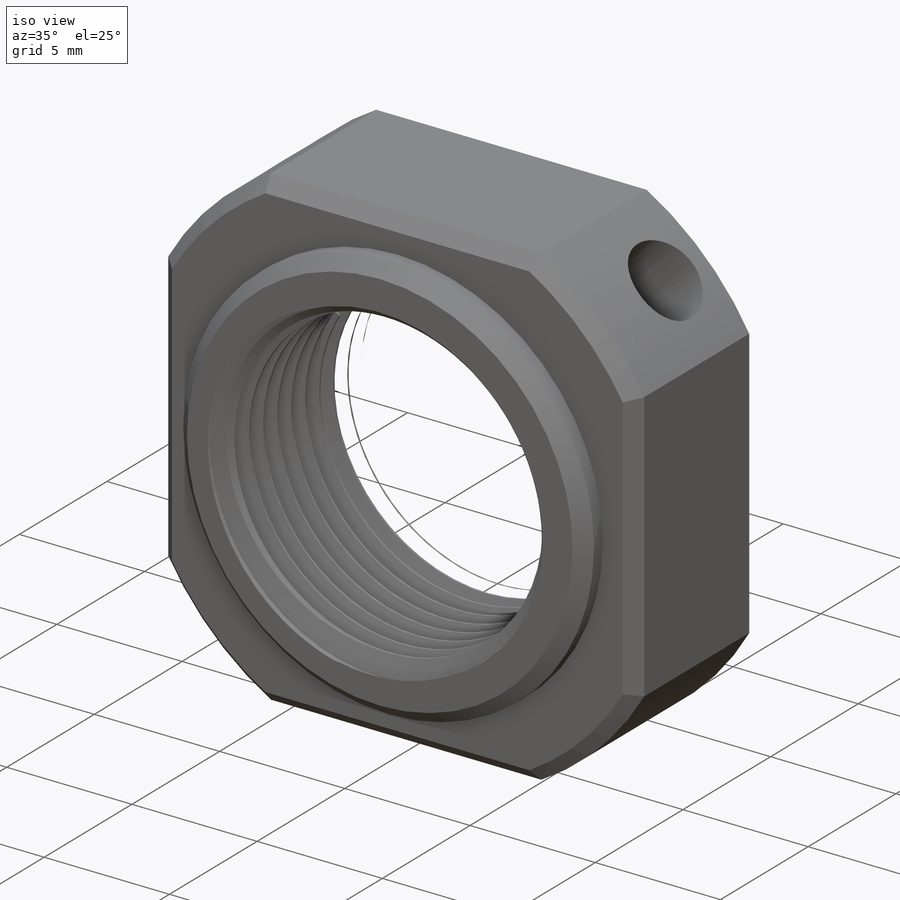
[diagram: iso view]
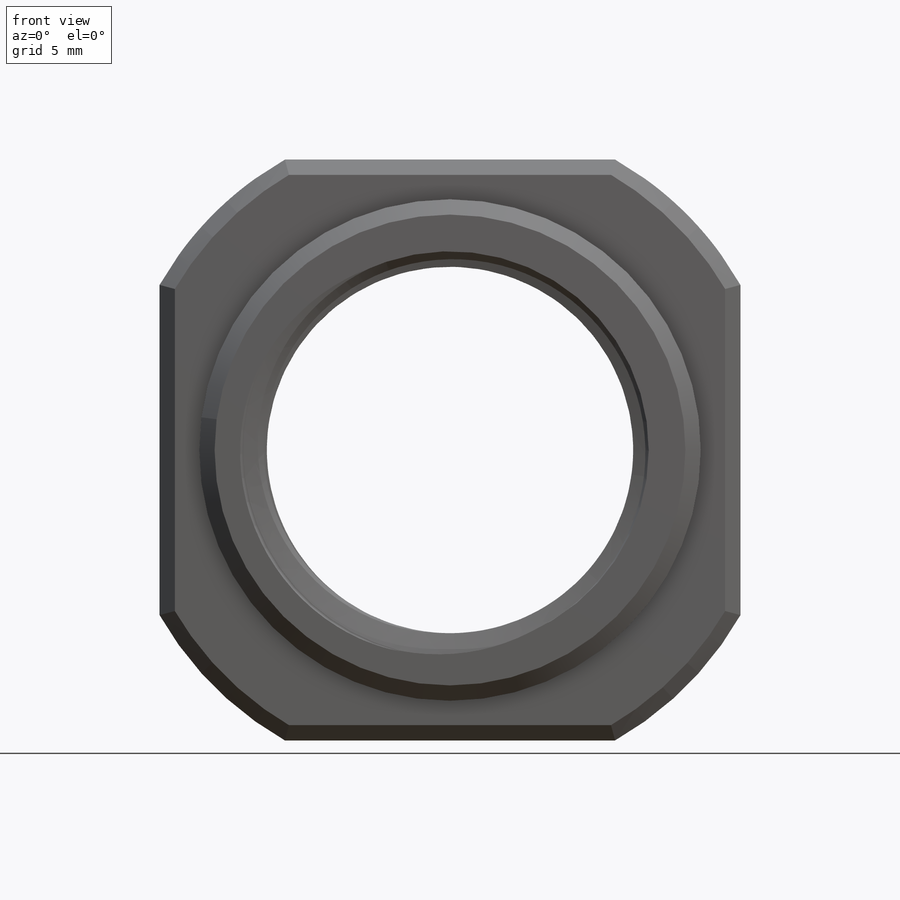
[diagram: front view]
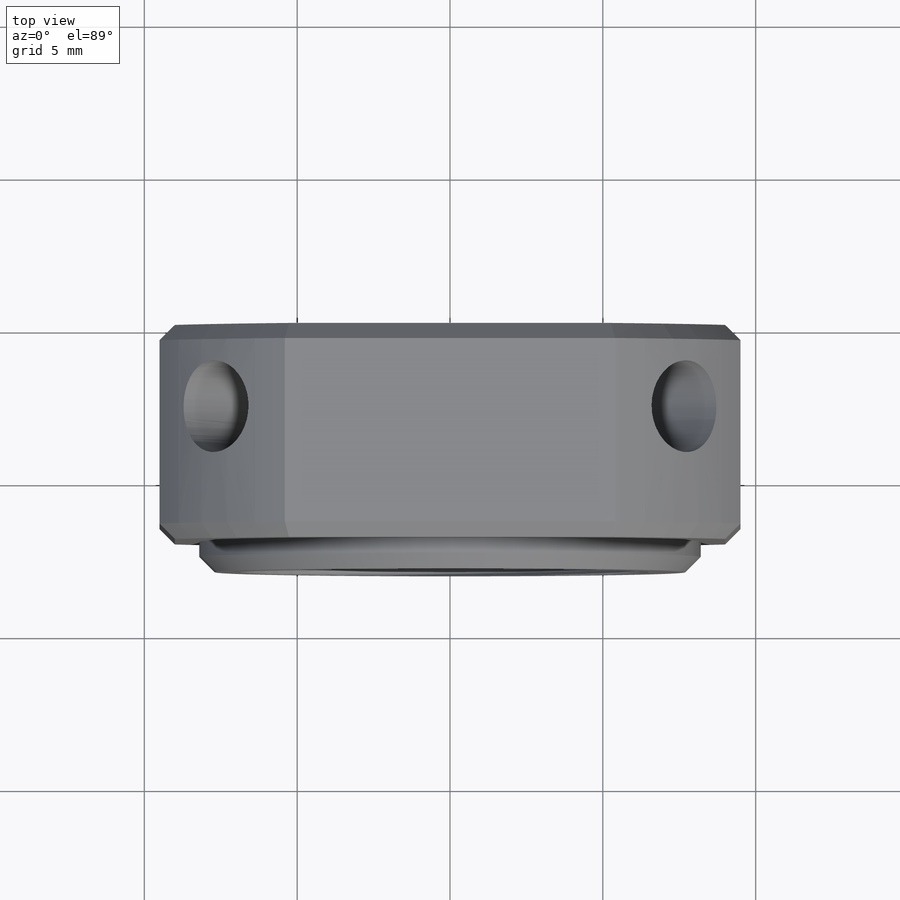
[diagram: top view]
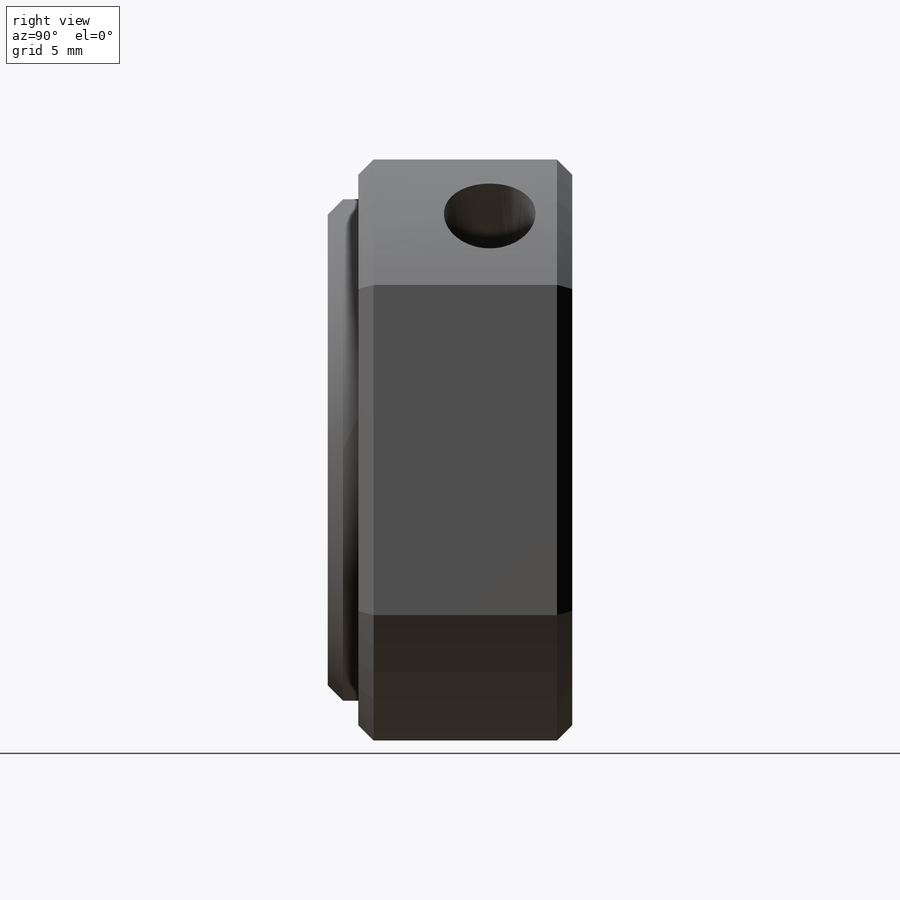
[diagram: right view]
SOLIDWORKS PART (.sldprt)
format: sldprt  version: not decoded by parser v0  size: 902,656 bytes
history: native  units: mm
features: sketch x6, cut_extrude x3, plane x2, material x1, extrude x1, chamfer x1, helix x1, sweep x1 (+11 scaffold rows collapsed)
feature tree (27):
  scaffold x11  (default folders/planes/origin — collapsed)
  material  "1060 Alloy"
  sketch  "Sketch1"  dims[c1.D2=~22.081906mm c1.D3=~21.854977mm c1.D4=12.0mm c1.D1=19.0mm c2.D2=10.8mm]
  extrude  "Boss-Extrude1"  Depth=8mm
  sketch  "Sketch2"  dims[D2=16.4mm D1=19.0mm]
  cut_extrude  "Cut-Extrude1"  Depth=1mm
  chamfer  "Chamfer1"  Distance=0.5mm Angle=45deg
  plane  "Plane1"
  sketch  "Sketch3"  dims[D1=3.0mm D2=2.7mm]
  cut_extrude  "Cut-Extrude2"  [1 undecoded]
  plane  "Plane2"
  sketch  "Sketch4"  dims[D1=3.0mm D2=2.7mm]
  cut_extrude  "Cut-Extrude3"  [1 undecoded]
  sketch  "Sketch5"
  helix  "Helix/Spiral1"  Pitch=8mm
  sketch  "Sketch6"  dims[D3=0.23mm D1=0.96mm D2=1.0mm]
  sweep  "Cut-Sweep1"
decode coverage: 9 of 13 modeling features carry decoded parameters
note: ~ marks probable driven/reference dimensions
note: 2 parameter values undecoded
note: suppression state not decoded; provenance and decode notes live in map.json
